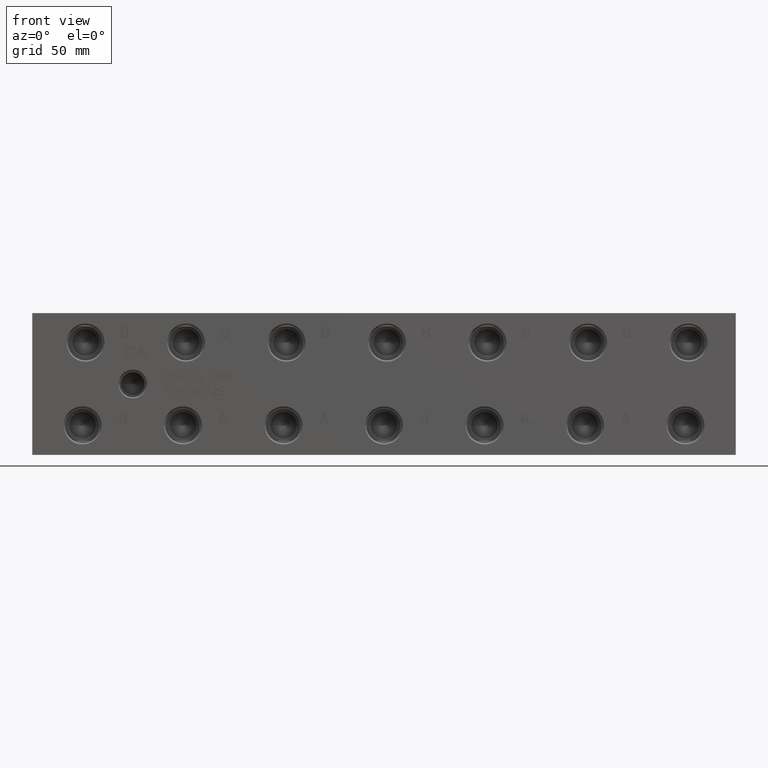
[diagram: clean part render]
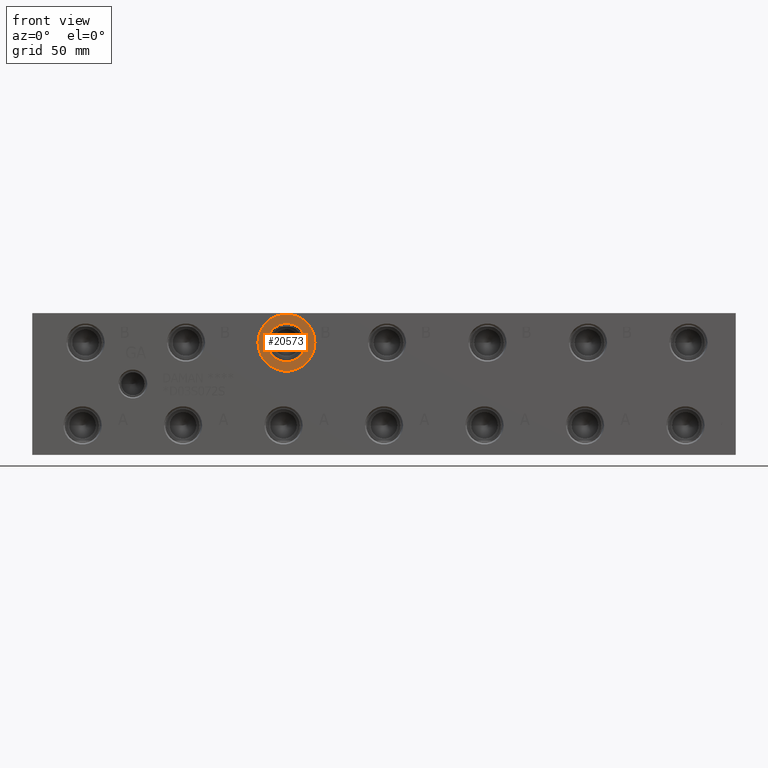
[diagram: same view with one face highlighted and labeled with its STEP entity id]
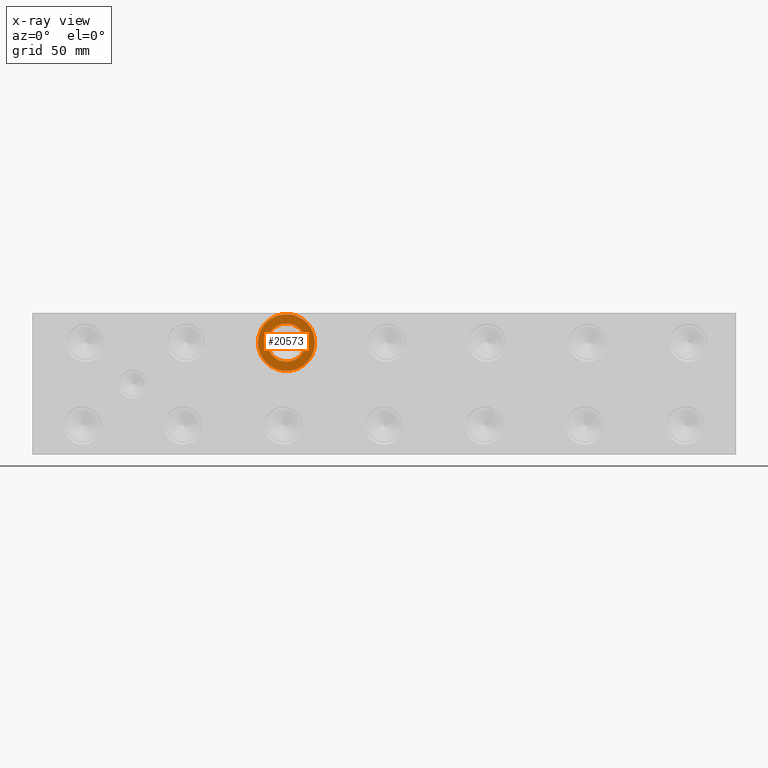
[diagram: x-ray of the same camera — body ghosted, the highlighted face saturated]
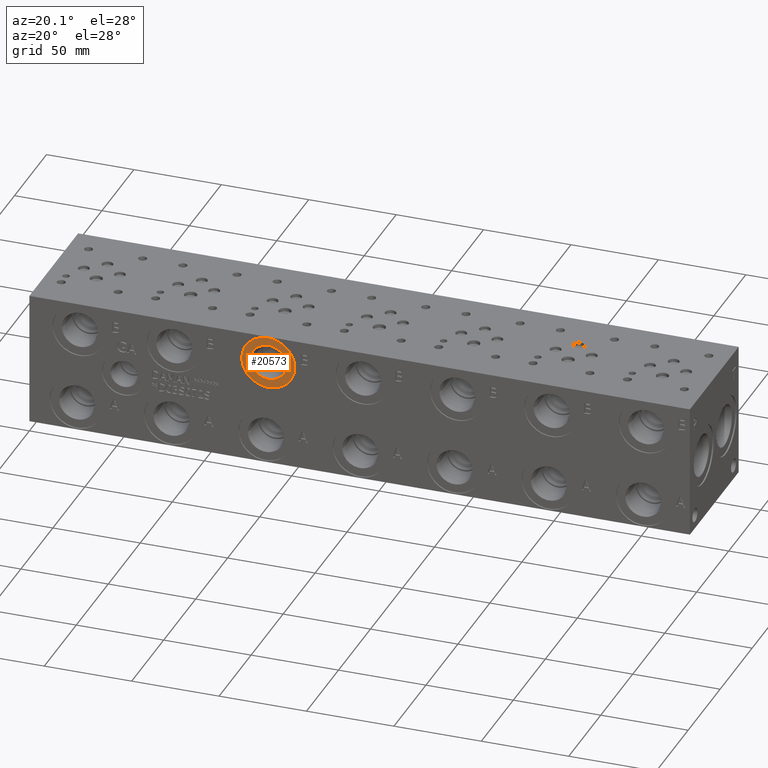
[diagram: same view with one face highlighted and labeled with its STEP entity id]
A machine part, front view. The second image highlights one B-rep face of the part: STEP entity #20573.
The next image is the same camera in x-ray: the body ghosted, the highlighted face saturated — about 0% of this face is hidden behind the body in this view.
A second angle (auxiliary view) of the same face is appended — the face is thin or edge-on in the first view.
In plain terms, the highlighted planar face has unit normal (0, 1, 0).
Its self-contained STEP definition (entity closure, byte-faithful):
#811=CIRCLE('',#21901,15.3162);
#812=CIRCLE('',#21902,15.3162);
#813=CIRCLE('',#21904,10.2997);
#814=CIRCLE('',#21905,10.2997);
#1213=FACE_BOUND('',#4112,.T.);
#2894=FACE_OUTER_BOUND('',#4111,.T.);
#4111=EDGE_LOOP('',(#17469,#17470));
#4112=EDGE_LOOP('',(#17471,#17472));
#9543=VERTEX_POINT('',#35331);
#9544=VERTEX_POINT('',#35333);
#9545=VERTEX_POINT('',#35337);
#9546=VERTEX_POINT('',#35338);
#12301=EDGE_CURVE('',#9543,#9544,#811,.T.);
#12302=EDGE_CURVE('',#9544,#9543,#812,.T.);
#12303=EDGE_CURVE('',#9545,#9546,#813,.T.);
#12304=EDGE_CURVE('',#9546,#9545,#814,.T.);
#17469=ORIENTED_EDGE('',*,*,#12302,.F.);
#17470=ORIENTED_EDGE('',*,*,#12301,.F.);
#17471=ORIENTED_EDGE('',*,*,#12303,.T.);
#17472=ORIENTED_EDGE('',*,*,#12304,.T.);
#18997=PLANE('',#21903);
#20573=ADVANCED_FACE('',(#2894,#1213),#18997,.F.);
#21901=AXIS2_PLACEMENT_3D('',#35334,#26156,#26157);
#21902=AXIS2_PLACEMENT_3D('',#35335,#26158,#26159);
#21903=AXIS2_PLACEMENT_3D('',#35336,#26160,#26161);
#21904=AXIS2_PLACEMENT_3D('',#35339,#26162,#26163);
#21905=AXIS2_PLACEMENT_3D('',#35340,#26164,#26165);
#26156=DIRECTION('center_axis',(0.,1.,0.));
#26157=DIRECTION('ref_axis',(1.,0.,0.));
#26158=DIRECTION('center_axis',(0.,1.,0.));
#26159=DIRECTION('ref_axis',(1.,0.,0.));
#26160=DIRECTION('center_axis',(0.,1.,0.));
#26161=DIRECTION('ref_axis',(0.,0.,1.));
#26162=DIRECTION('center_axis',(0.,1.,0.));
#26163=DIRECTION('ref_axis',(1.,0.,0.));
#26164=DIRECTION('center_axis',(0.,1.,0.));
#26165=DIRECTION('ref_axis',(1.,0.,0.));
#35331=CARTESIAN_POINT('',(121.2088,0.7874,60.325));
#35333=CARTESIAN_POINT('',(151.8412,0.7874,60.325));
#35334=CARTESIAN_POINT('Origin',(136.525,0.7874,60.325));
#35335=CARTESIAN_POINT('Origin',(136.525,0.7874,60.325));
#35336=CARTESIAN_POINT('Origin',(146.8247,0.7874,60.325));
#35337=CARTESIAN_POINT('',(146.8247,0.7874,60.325));
#35338=CARTESIAN_POINT('',(126.2253,0.7874,60.325));
#35339=CARTESIAN_POINT('Origin',(136.525,0.7874,60.325));
#35340=CARTESIAN_POINT('Origin',(136.525,0.7874,60.325));